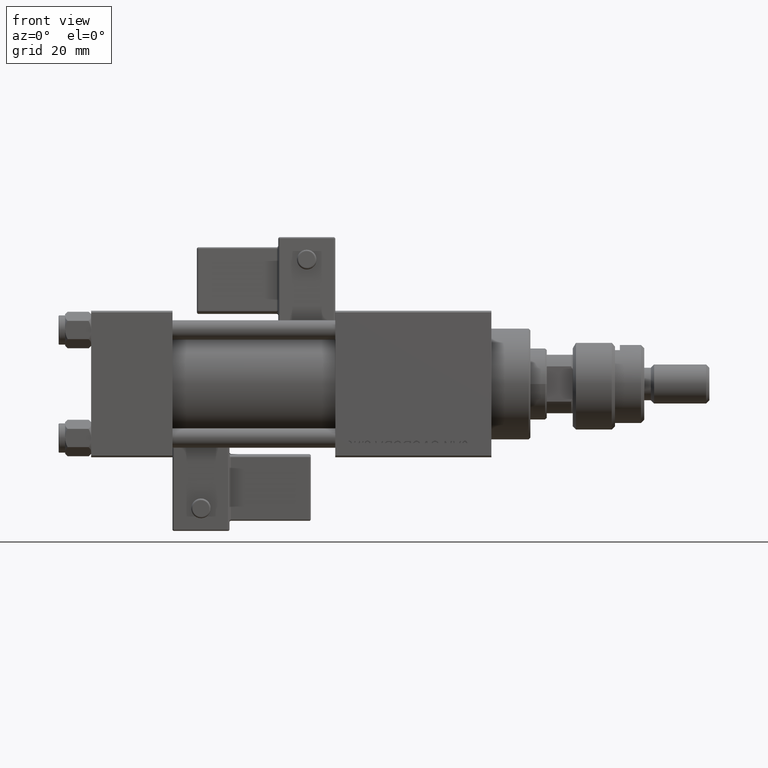
[diagram: clean part render]
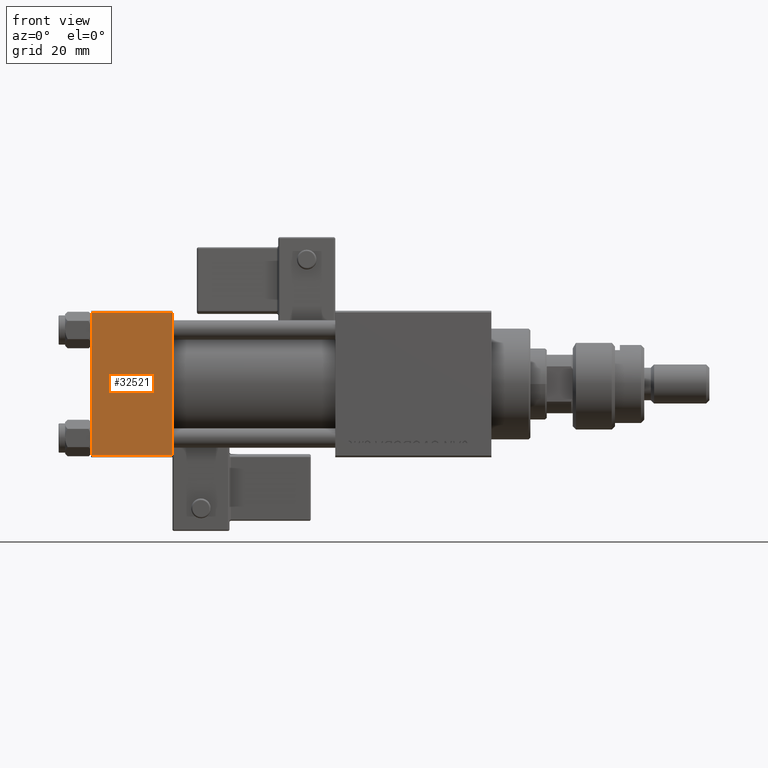
[diagram: same view with one face highlighted and labeled with its STEP entity id]
A machine part, front view. The second image highlights one B-rep face of the part: STEP entity #32521.
In plain terms, the highlighted planar face has unit normal (0, 1, 0).
Its self-contained STEP definition (entity closure, byte-faithful):
#1879 = LINE ( 'NONE', #18470, #37108 ) ;
#2411 = LINE ( 'NONE', #22831, #42143 ) ;
#2841 = ORIENTED_EDGE ( 'NONE', *, *, #9527, .T. ) ;
#5706 = DIRECTION ( 'NONE',  ( 0.000000000000000000, 0.000000000000000000, -1.000000000000000000 ) ) ;
#5896 = AXIS2_PLACEMENT_3D ( 'NONE', #53680, #20795, #24618 ) ;
#7822 = ORIENTED_EDGE ( 'NONE', *, *, #35071, .T. ) ;
#9527 = EDGE_CURVE ( 'NONE', #25360, #19794, #2411, .T. ) ;
#11053 = VECTOR ( 'NONE', #5706, 1000.000000000000000 ) ;
#15458 = CARTESIAN_POINT ( 'NONE',  ( 0.000000000000000000, -22.50000000000000000, 22.00000000000000000 ) ) ;
#18470 = CARTESIAN_POINT ( 'NONE',  ( 0.000000000000000000, -22.50000000000000000, 22.50000000000000000 ) ) ;
#18736 = DIRECTION ( 'NONE',  ( 0.000000000000000000, 0.000000000000000000, -1.000000000000000000 ) ) ;
#19794 = VERTEX_POINT ( 'NONE', #21510 ) ;
#20795 = DIRECTION ( 'NONE',  ( -0.000000000000000000, 1.000000000000000000, 0.000000000000000000 ) ) ;
#21510 = CARTESIAN_POINT ( 'NONE',  ( 25.00000000000000000, -22.50000000000000000, -21.99999999999997158 ) ) ;
#21771 = LINE ( 'NONE', #30183, #11053 ) ;
#22831 = CARTESIAN_POINT ( 'NONE',  ( 25.00000000000000000, -22.50000000000000000, -21.99999999999998579 ) ) ;
#23580 = VECTOR ( 'NONE', #36674, 1000.000000000000000 ) ;
#24618 = DIRECTION ( 'NONE',  ( 0.000000000000000000, -0.000000000000000000, 1.000000000000000000 ) ) ;
#25360 = VERTEX_POINT ( 'NONE', #49527 ) ;
#30183 = CARTESIAN_POINT ( 'NONE',  ( 25.00000000000000000, -22.50000000000000000, 22.50000000000000000 ) ) ;
#31586 = CARTESIAN_POINT ( 'NONE',  ( 25.00000000000000000, -22.50000000000000000, 22.00000000000000000 ) ) ;
#32521 = ADVANCED_FACE ( 'NONE', ( #37378 ), #37104, .F. ) ;
#33995 = ORIENTED_EDGE ( 'NONE', *, *, #47001, .T. ) ;
#35071 = EDGE_CURVE ( 'NONE', #42702, #25360, #1879, .T. ) ;
#35321 = CARTESIAN_POINT ( 'NONE',  ( 25.00000000000000000, -22.50000000000000000, 22.00000000000000000 ) ) ;
#35579 = EDGE_CURVE ( 'NONE', #35627, #19794, #21771, .T. ) ;
#35627 = VERTEX_POINT ( 'NONE', #35321 ) ;
#36674 = DIRECTION ( 'NONE',  ( -1.000000000000000000, 0.000000000000000000, 0.000000000000000000 ) ) ;
#37104 = PLANE ( 'NONE',  #5896 ) ;
#37108 = VECTOR ( 'NONE', #18736, 1000.000000000000000 ) ;
#37378 = FACE_OUTER_BOUND ( 'NONE', #50107, .T. ) ;
#42143 = VECTOR ( 'NONE', #51093, 1000.000000000000000 ) ;
#42702 = VERTEX_POINT ( 'NONE', #15458 ) ;
#47001 = EDGE_CURVE ( 'NONE', #35627, #42702, #48161, .T. ) ;
#48161 = LINE ( 'NONE', #31586, #23580 ) ;
#49527 = CARTESIAN_POINT ( 'NONE',  ( 0.000000000000000000, -22.50000000000000000, -21.99999999999997158 ) ) ;
#50107 = EDGE_LOOP ( 'NONE', ( #7822, #2841, #51327, #33995 ) ) ;
#51093 = DIRECTION ( 'NONE',  ( 1.000000000000000000, 0.000000000000000000, 0.000000000000000000 ) ) ;
#51327 = ORIENTED_EDGE ( 'NONE', *, *, #35579, .F. ) ;
#53680 = CARTESIAN_POINT ( 'NONE',  ( 25.00000000000000000, -22.50000000000000000, 22.50000000000000000 ) ) ;